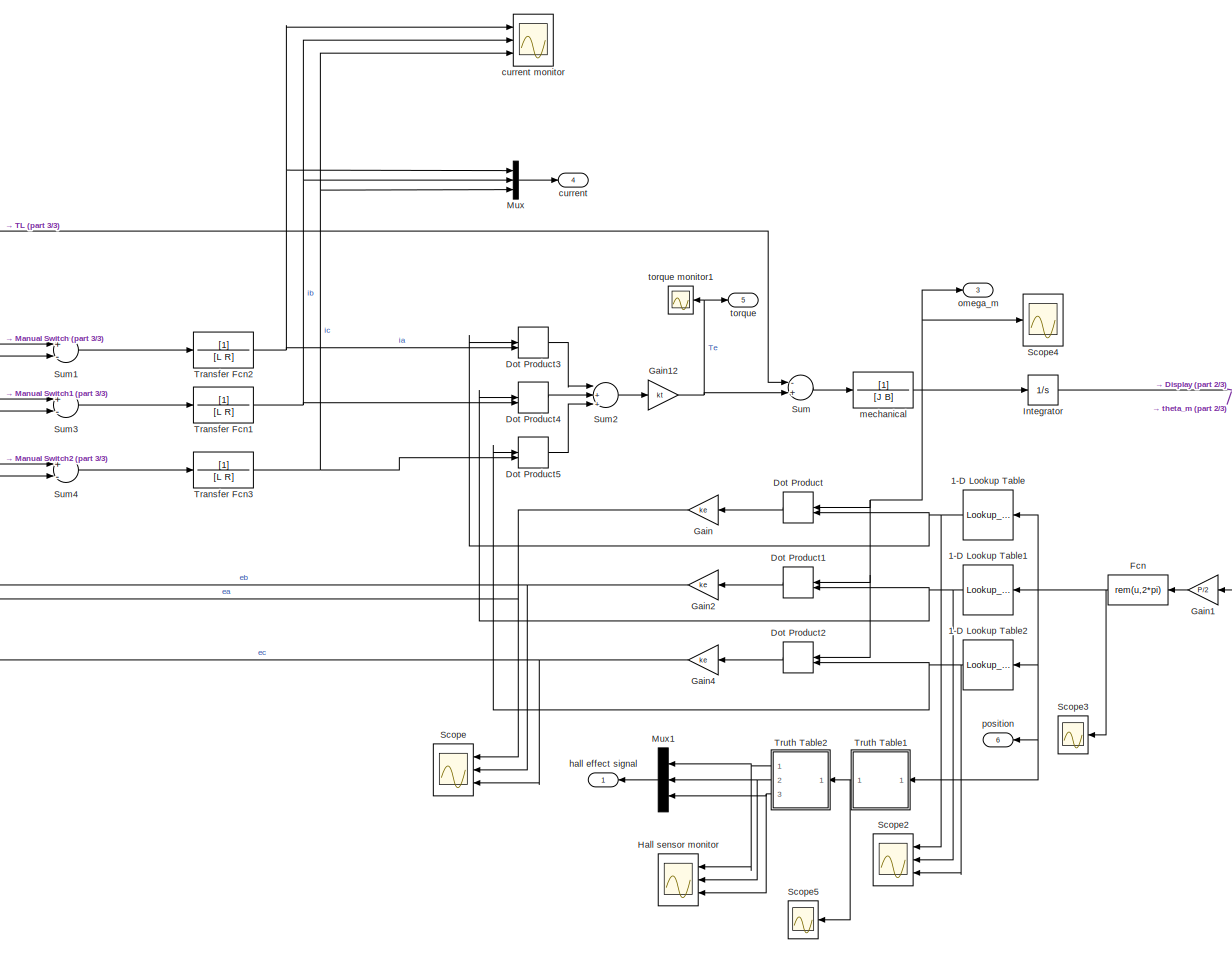
[diagram: root canvas - part 1/3, center side, full height]
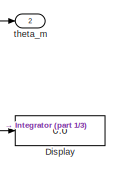
[diagram: root canvas - part 2/3, middle right region]
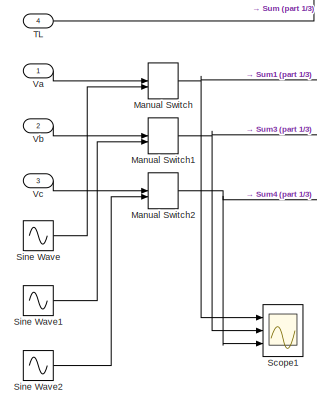
[diagram: root canvas - part 3/3, middle left region]
MODEL slx_dde212c6de50
KIND model
CONFIG AbsTol = auto
CONFIG FixedStep = auto
CONFIG MaxStep = auto
CONFIG MinStep = auto
CONFIG RelTol = 1e-3
CONFIG SampleTimeConstraint = Unconstrained
CONFIG Solver = VariableStepAuto
CONFIG SolverMode = Auto
CONFIG SolverName = VariableStepAuto
CONFIG StartTime = 0.0
CONFIG StopTime = inf
BLOCK [Lookup_n-D] 1-D Lookup Table
  BreakpointsForDimension1 = 0:0.001:2*pi
  InternalRulePriority = Speed
  NumberOfTableDimensions = 1
  Ports = [1, 1]
  RndMeth = Simplest
  Table = trapezoid(0:0.001:2*pi,0)
BLOCK [Lookup_n-D] 1-D Lookup Table1
  BreakpointsForDimension1 = ((0:0.001:2*pi))
  InternalRulePriority = Speed
  NumberOfTableDimensions = 1
  Ports = [1, 1]
  RndMeth = Simplest
  Table = trapezoid(0:0.001:2*pi, 2/3*pi)
BLOCK [Lookup_n-D] 1-D Lookup Table2
  BreakpointsForDimension1 = (0:0.001:2*pi)
  InternalRulePriority = Speed
  NumberOfTableDimensions = 1
  Ports = [1, 1]
  RndMeth = Simplest
  Table = trapezoid(0:0.001:2*pi, 4/3*pi)
BLOCK [Display] Display
  Decimation = 1
  Ports = [1]
BLOCK [DotProduct] Dot Product
  OutDataTypeStr = Inherit: Inherit via internal rule
BLOCK [DotProduct] Dot Product1
  OutDataTypeStr = Inherit: Inherit via internal rule
BLOCK [DotProduct] Dot Product2
  OutDataTypeStr = Inherit: Inherit via internal rule
BLOCK [DotProduct] Dot Product3
  OutDataTypeStr = Inherit: Inherit via internal rule
BLOCK [DotProduct] Dot Product4
  OutDataTypeStr = Inherit: Inherit via internal rule
BLOCK [DotProduct] Dot Product5
  OutDataTypeStr = Inherit: Inherit via internal rule
BLOCK [Fcn] Fcn
  Expr = rem(u,2*pi)
BLOCK [Gain] Gain
  Gain = ke
  OutDataTypeStr = Inherit: Inherit via internal rule
  ParamDataTypeStr = Inherit: Inherit via internal rule
  SaturateOnIntegerOverflow = off
BLOCK [Gain] Gain1
  Gain = P/2
  OutDataTypeStr = Inherit: Inherit via internal rule
  ParamDataTypeStr = Inherit: Inherit via internal rule
  SaturateOnIntegerOverflow = off
BLOCK [Gain] Gain12
  Gain = kt
  OutDataTypeStr = Inherit: Inherit via internal rule
  ParamDataTypeStr = Inherit: Inherit via internal rule
  SaturateOnIntegerOverflow = off
BLOCK [Gain] Gain2
  Gain = ke
  OutDataTypeStr = Inherit: Inherit via internal rule
  ParamDataTypeStr = Inherit: Inherit via internal rule
  SaturateOnIntegerOverflow = off
BLOCK [Gain] Gain4
  Gain = ke
  OutDataTypeStr = Inherit: Inherit via internal rule
  ParamDataTypeStr = Inherit: Inherit via internal rule
  SaturateOnIntegerOverflow = off
BLOCK [Scope] Hall sensor monitor
  NumInputPorts = 3
  Ports = [3]
  ScopeSpecificationString = Simulink.scopes.TimeScopeBlockCfg('CurrentConfiguration', extmgr.ConfigurationSet(extmgr.Configuration('Core','General UI',true),extmgr.Configuration('Core','Source UI',true),extmgr.Configuration('Sources','WiredSimulink',true,'DataLoggingVariableName','ScopeData1'),extmgr.Configuration('Visuals','Time Domain',true,'SerializedDisplays',{struct('MinYLimReal','-0.125','MaxYLimReal','1.125','YLabelRe...<+1497ch>
BLOCK [Integrator] Integrator
  Ports = [1, 1]
BLOCK [ManualSwitch] Manual Switch
BLOCK [ManualSwitch] Manual Switch1
BLOCK [ManualSwitch] Manual Switch2
BLOCK [Mux] Mux
  DisplayOption = bar
  Inputs = 3
  Ports = [3, 1]
BLOCK [Mux] Mux1
  DisplayOption = bar
  Inputs = 3
  Ports = [3, 1]
BLOCK [Scope] Scope
  NumInputPorts = 3
  Ports = [3]
  ScopeSpecificationString = Simulink.scopes.TimeScopeBlockCfg('CurrentConfiguration', extmgr.ConfigurationSet(extmgr.Configuration('Core','General UI',true),extmgr.Configuration('Core','Source UI',true),extmgr.Configuration('Sources','WiredSimulink',true),extmgr.Configuration('Visuals','Time Domain',true,'SerializedDisplays',{struct('MinYLimReal','-17.0557','MaxYLimReal','17.0557','YLabelReal','','MinYLimMag','0.00000','MaxY...<+1483ch>
BLOCK [Scope] Scope1
  NumInputPorts = 3
  Ports = [3]
  ScopeSpecificationString = Simulink.scopes.TimeScopeBlockCfg('CurrentConfiguration', extmgr.ConfigurationSet(extmgr.Configuration('Core','General UI',true),extmgr.Configuration('Core','Source UI',true),extmgr.Configuration('Sources','WiredSimulink',true,'DataLoggingVariableName','ScopeData2'),extmgr.Configuration('Visuals','Time Domain',true,'SerializedDisplays',{struct('MinYLimReal','-15.00000','MaxYLimReal','15.00000','YL...<+1585ch>
BLOCK [Scope] Scope2
  NumInputPorts = 3
  Ports = [3]
  ScopeSpecificationString = Simulink.scopes.TimeScopeBlockCfg('CurrentConfiguration', extmgr.ConfigurationSet(extmgr.Configuration('Core','General UI',true),extmgr.Configuration('Core','Source UI',true),extmgr.Configuration('Sources','WiredSimulink',true,'DataLoggingVariableName','ScopeData3'),extmgr.Configuration('Visuals','Time Domain',true,'SerializedDisplays',{struct('MinYLimReal','-1.25','MaxYLimReal','1.25','YLabelReal...<+1592ch>
BLOCK [Scope] Scope3
  Ports = [1]
  ScopeSpecificationString = Simulink.scopes.TimeScopeBlockCfg('CurrentConfiguration', extmgr.ConfigurationSet(extmgr.Configuration('Core','General UI',true),extmgr.Configuration('Core','Source UI',true),extmgr.Configuration('Sources','WiredSimulink',true,'DataLoggingVariableName','ScopeData6'),extmgr.Configuration('Visuals','Time Domain',true,'SerializedDisplays',{struct('MinYLimReal','-0.78539','MaxYLimReal','7.06848','YLab...<+1558ch>
BLOCK [Scope] Scope4
  Ports = [1]
  ScopeSpecificationString = Simulink.scopes.TimeScopeBlockCfg('CurrentConfiguration', extmgr.ConfigurationSet(extmgr.Configuration('Core','General UI',true),extmgr.Configuration('Core','Source UI',true),extmgr.Configuration('Sources','WiredSimulink',true,'DataLoggingVariableName','ScopeData7'),extmgr.Configuration('Visuals','Time Domain',true,'SerializedDisplays',{struct('MinYLimReal','-0.14674','MaxYLimReal','1.32067','YLab...<+1589ch>
BLOCK [Scope] Scope5
  Ports = [1]
  ScopeSpecificationString = Simulink.scopes.TimeScopeBlockCfg('CurrentConfiguration', extmgr.ConfigurationSet(extmgr.Configuration('Core','General UI',true),extmgr.Configuration('Core','Source UI',true),extmgr.Configuration('Sources','WiredSimulink',true,'DataLoggingVariableName','ScopeData1'),extmgr.Configuration('Visuals','Time Domain',true,'SerializedDisplays',{struct('MinYLimReal','0.5','MaxYLimReal','5.5','YLabelReal','...<+1533ch>
BLOCK [Sin] Sine Wave
  Amplitude = 24
  Ports = [0, 1]
  SampleTime = 0
BLOCK [Sin] Sine Wave1
  Amplitude = 24
  Phase = 2/3*pi
  Ports = [0, 1]
  SampleTime = 0
BLOCK [Sin] Sine Wave2
  Amplitude = 24
  Phase = 4/3*pi
  Ports = [0, 1]
  SampleTime = 0
BLOCK [Sum] Sum
  InputSameDT = off
  Inputs = -+
  OutDataTypeStr = Inherit: Inherit via internal rule
  Ports = [2, 1]
  SaturateOnIntegerOverflow = off
BLOCK [Sum] Sum1
  InputSameDT = off
  Inputs = +-
  OutDataTypeStr = Inherit: Inherit via internal rule
  Ports = [2, 1]
  SaturateOnIntegerOverflow = off
BLOCK [Sum] Sum2
  InputSameDT = off
  Inputs = |+++
  OutDataTypeStr = Inherit: Inherit via internal rule
  Ports = [3, 1]
  SaturateOnIntegerOverflow = off
BLOCK [Sum] Sum3
  InputSameDT = off
  Inputs = +-
  OutDataTypeStr = Inherit: Inherit via internal rule
  Ports = [2, 1]
  SaturateOnIntegerOverflow = off
BLOCK [Sum] Sum4
  InputSameDT = off
  Inputs = +-
  OutDataTypeStr = Inherit: Inherit via internal rule
  Ports = [2, 1]
  SaturateOnIntegerOverflow = off
BLOCK [Inport] TL
  IconDisplay = Port number
  Port = 4
BLOCK [TransferFcn] Transfer Fcn1
  Denominator = [L R]
BLOCK [TransferFcn] Transfer Fcn2
  Denominator = [L R]
BLOCK [TransferFcn] Transfer Fcn3
  Denominator = [L R]
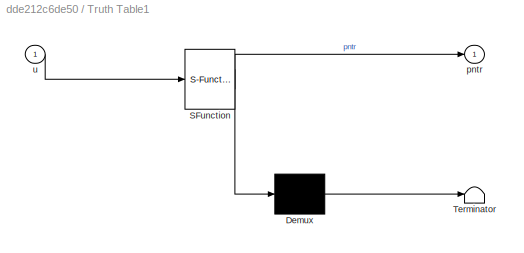
BLOCK [SubSystem] Truth Table1
  ErrorFcn = Stateflow.Translate.translate
  PermitHierarchicalResolution = ExplicitOnly
  Ports = [1, 1]
  RequestExecContextInheritance = off
  SFBlockType = Truth Table
  TreatAsAtomicUnit = on
  Variant = off
BLOCK [Demux] Truth Table1/ Demux 
  Outputs = 1
  Ports = [1, 1]
BLOCK [S-Function] Truth Table1/ SFunction 
  EnableBusSupport = on
  FunctionName = sf_sfun
  PortCounts = [1 2]
  Ports = [1, 2]
  SFunctionDeploymentMode = off
  Tag = Stateflow S-Function BLDCmotor_modeling 1
BLOCK [Terminator] Truth Table1/ Terminator 
BLOCK [Outport] Truth Table1/pntr
  IconDisplay = Port number
BLOCK [Inport] Truth Table1/u
  IconDisplay = Port number
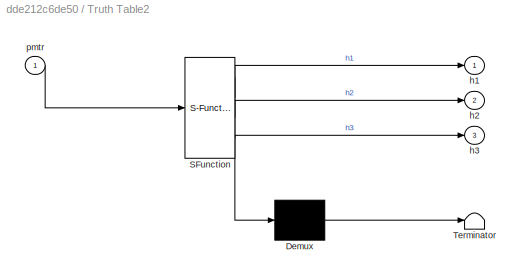
BLOCK [SubSystem] Truth Table2
  ErrorFcn = Stateflow.Translate.translate
  PermitHierarchicalResolution = ExplicitOnly
  Ports = [1, 3]
  RequestExecContextInheritance = off
  SFBlockType = Truth Table
  TreatAsAtomicUnit = on
  Variant = off
BLOCK [Demux] Truth Table2/ Demux 
  Outputs = 1
  Ports = [1, 1]
BLOCK [S-Function] Truth Table2/ SFunction 
  EnableBusSupport = on
  FunctionName = sf_sfun
  PortCounts = [1 4]
  Ports = [1, 4]
  SFunctionDeploymentMode = off
  Tag = Stateflow S-Function BLDCmotor_modeling 2
BLOCK [Terminator] Truth Table2/ Terminator 
BLOCK [Outport] Truth Table2/h1
  IconDisplay = Port number
BLOCK [Outport] Truth Table2/h2
  IconDisplay = Port number
  Port = 2
BLOCK [Outport] Truth Table2/h3
  IconDisplay = Port number
  Port = 3
BLOCK [Inport] Truth Table2/pmtr
  IconDisplay = Port number
BLOCK [Inport] Va
  IconDisplay = Port number
BLOCK [Inport] Vb
  IconDisplay = Port number
  Port = 2
BLOCK [Inport] Vc
  IconDisplay = Port number
  Port = 3
BLOCK [Outport] current
  IconDisplay = Port number
  Port = 4
BLOCK [Scope] current monitor
  NumInputPorts = 3
  Ports = [3]
  ScopeSpecificationString = Simulink.scopes.TimeScopeBlockCfg('CurrentConfiguration', extmgr.ConfigurationSet(extmgr.Configuration('Core','General UI',true),extmgr.Configuration('Core','Source UI',true),extmgr.Configuration('Sources','WiredSimulink',true,'DataLoggingVariableName','ScopeData4'),extmgr.Configuration('Visuals','Time Domain',true,'SerializedDisplays',{struct('MinYLimReal','-7.50051','MaxYLimReal','8.75821','YLab...<+1564ch>
BLOCK [Outport] hall effect signal
  IconDisplay = Port number
BLOCK [TransferFcn] mechanical
  Denominator = [J B]
BLOCK [Outport] omega_m
  IconDisplay = Port number
  Port = 3
BLOCK [Outport] position
  IconDisplay = Port number
  Port = 6
BLOCK [Outport] theta_m
  IconDisplay = Port number
  Port = 2
BLOCK [Outport] torque
  IconDisplay = Port number
  Port = 5
BLOCK [Scope] torque monitor1
  Ports = [1]
  ScopeSpecificationString = Simulink.scopes.TimeScopeBlockCfg('CurrentConfiguration', extmgr.ConfigurationSet(extmgr.Configuration('Core','General UI',true),extmgr.Configuration('Core','Source UI',true),extmgr.Configuration('Sources','WiredSimulink',true,'DataLoggingVariableName','ScopeData5'),extmgr.Configuration('Visuals','Time Domain',true,'SerializedDisplays',{struct('MinYLimReal','-60.92699','MaxYLimReal','61.15494','YL...<+1563ch>
NET 1-D Lookup Table1:1 -> Dot Product1:2, Dot Product4:1, Scope2:2
NET 1-D Lookup Table2:1 -> Dot Product2:2, Dot Product5:1, Scope2:3
NET 1-D Lookup Table:1 -> Dot Product3:1, Dot Product:2, Scope2:1
LINE Dot Product1:1 -> Gain2:1
LINE Dot Product2:1 -> Gain4:1
LINE Dot Product3:1 -> Sum2:1
LINE Dot Product4:1 -> Sum2:2
LINE Dot Product5:1 -> Sum2:3
LINE Dot Product:1 -> Gain:1
NET Fcn:1 -> 1-D Lookup Table1:1, 1-D Lookup Table2:1, 1-D Lookup Table:1, Scope3:1, Truth Table1:1, position:1
NET Gain12:1 -> Sum:2, torque monitor1:1, torque:1
LINE Gain1:1 -> Fcn:1
NET Gain2:1 -> Scope:2, Sum3:2
NET Gain4:1 -> Scope:3, Sum4:2
NET Gain:1 -> Scope:1, Sum1:2
NET Integrator:1 -> Display:1, Gain1:1, theta_m:1
NET Manual Switch1:1 -> Scope1:2, Sum3:1
NET Manual Switch2:1 -> Scope1:3, Sum4:1
NET Manual Switch:1 -> Scope1:1, Sum1:1
LINE Mux1:1 -> hall effect signal:1
LINE Mux:1 -> current:1
LINE Sine Wave1:1 -> Manual Switch1:2
LINE Sine Wave2:1 -> Manual Switch2:2
LINE Sine Wave:1 -> Manual Switch:2
LINE Sum1:1 -> Transfer Fcn2:1
LINE Sum2:1 -> Gain12:1
LINE Sum3:1 -> Transfer Fcn1:1
LINE Sum4:1 -> Transfer Fcn3:1
LINE Sum:1 -> mechanical:1
LINE TL:1 -> Sum:1
NET Transfer Fcn1:1 -> Dot Product4:2, Mux:2, current monitor:2
NET Transfer Fcn2:1 -> Dot Product3:2, Mux:1, current monitor:1
NET Transfer Fcn3:1 -> Dot Product5:2, Mux:3, current monitor:3
NET Truth Table1:1 -> Scope5:1, Truth Table2:1
NET Truth Table2:1 -> Hall sensor monitor:1, Mux1:1
NET Truth Table2:2 -> Hall sensor monitor:2, Mux1:2
NET Truth Table2:3 -> Hall sensor monitor:3, Mux1:3
LINE Va:1 -> Manual Switch:1
LINE Vb:1 -> Manual Switch1:1
LINE Vc:1 -> Manual Switch2:1
NET mechanical:1 -> Dot Product1:1, Dot Product2:1, Dot Product:1, Integrator:1, Scope4:1, omega_m:1
note: NET lines group one-source signal fan-out (src -> all destinations, sorted); 1:1 wires keep LINE
CHART Truth Table1 states=1 transitions=1
  STATE_LABEL 'tt_blk_kernel'
  STATE_LABEL 'SCRIPT:\nfunction pntr = fcn(u)\n\naVarTruthTableCondition_1 = false;\naVarTruthTableCondition_2 = false;\naVarTruthTableCondition_3 = false;\naVarTruthTableCondition_4 = false;\naVarTruthTableCondition_5 = false;\naVarTruthTableCondition_6 = false;\n\n\n% 0 ~ 60\n\naVarTruthTableCondition_1 = logical(0 <= abs(u) && abs(u) < 1/3*pi);\n\n% 60 ~ 120\n\naVarTruthTableCondition_2 = logical(1/3*pi <= abs(u) && abs(u) <...<+1863ch>'
CHART Truth Table2 states=1 transitions=1
  STATE_LABEL 'tt_blk_kernel'
  STATE_LABEL 'SCRIPT:\nfunction [h1, h2, h3] = fcn(pmtr)\n\naVarTruthTableCondition_1 = false;\naVarTruthTableCondition_2 = false;\naVarTruthTableCondition_3 = false;\naVarTruthTableCondition_4 = false;\naVarTruthTableCondition_5 = false;\naVarTruthTableCondition_6 = false;\n\n\n% 1\n\naVarTruthTableCondition_1 = logical(pmtr == 1);\n\n% 2\n\naVarTruthTableCondition_2 = logical(pmtr == 2);\n\n% 3\n\naVarTruthTableCondition_3 = logi...<+1862ch>'
